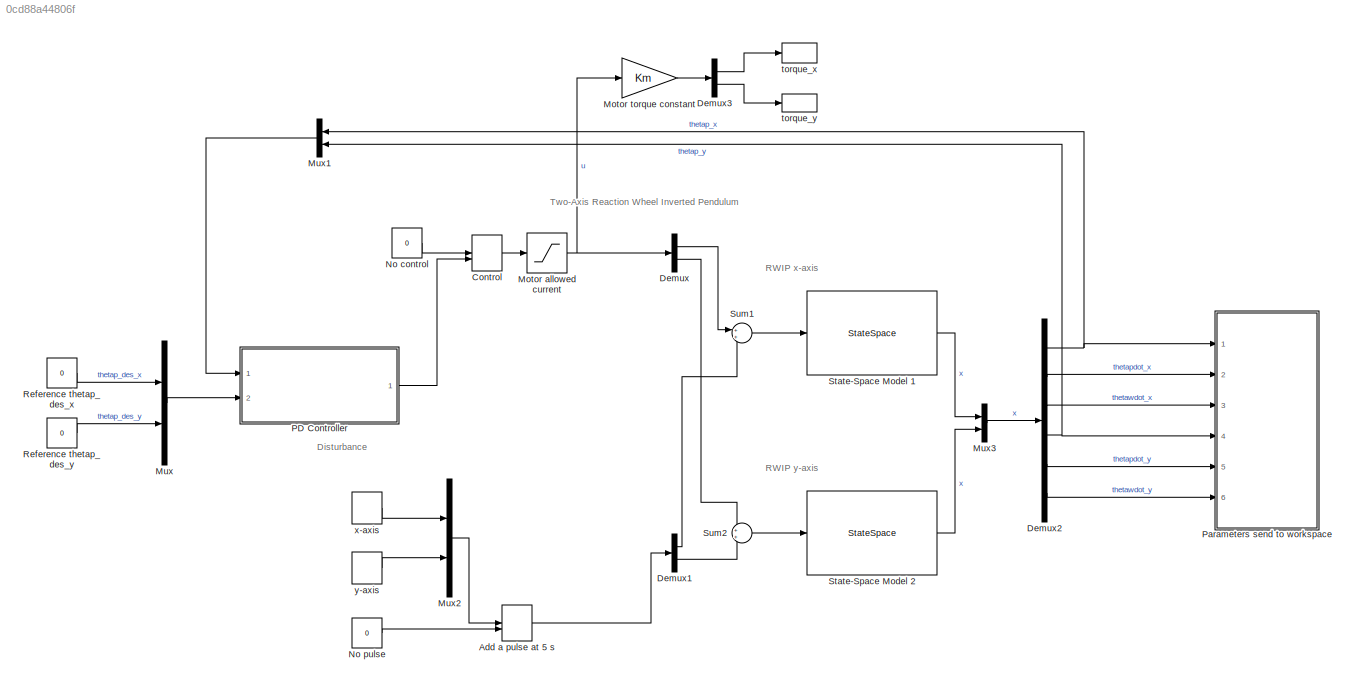
MODEL slx_0cd88a44806f
KIND model
CONFIG AbsTol = auto
CONFIG EnableMultiTasking = off
CONFIG FixedStep = auto
CONFIG MaxStep = auto
CONFIG MinStep = auto
CONFIG RelTol = 1e-3
CONFIG SampleTimeConstraint = Unconstrained
CONFIG Solver = VariableStepAuto
CONFIG SolverName = VariableStepAuto
CONFIG StartTime = 0.0
CONFIG StopTime = 10
BLOCK [ManualSwitch] Add a pulse at 5 s
  CurrentSetting = 0
BLOCK [ManualSwitch] Control
  CurrentSetting = 0
BLOCK [Demux] Demux
  DisplayOption = bar
  Outputs = 2
  Ports = [1, 2]
BLOCK [Demux] Demux1
  DisplayOption = bar
  Outputs = 2
  Ports = [1, 2]
BLOCK [Demux] Demux2
  DisplayOption = bar
  Outputs = 6
  Ports = [1, 6]
BLOCK [Demux] Demux3
  DisplayOption = bar
  Outputs = 2
  Ports = [1, 2]
BLOCK [Saturate] Motor allowed current
  InputPortMap = u0
  LowerLimit = -Imax
  Ports = [1, 1]
  UpperLimit = Imax
BLOCK [Gain] Motor torque constant
  Gain = Km
  OutDataTypeStr = Inherit: Inherit via internal rule
  ParamDataTypeStr = Inherit: Inherit via internal rule
  SaturateOnIntegerOverflow = off
BLOCK [Mux] Mux
  DisplayOption = bar
  Inputs = 2
  Ports = [2, 1]
BLOCK [Mux] Mux1
  DisplayOption = bar
  Inputs = 2
  Ports = [2, 1]
BLOCK [Mux] Mux2
  DisplayOption = bar
  Inputs = 2
  Ports = [2, 1]
BLOCK [Mux] Mux3
  DisplayOption = bar
  Inputs = 2
  Ports = [2, 1]
BLOCK [Constant] No control
  Value = 0
BLOCK [Constant] No pulse
  Value = 0
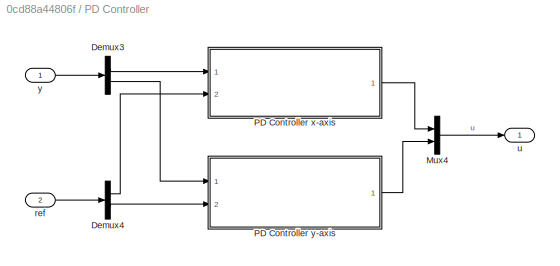
BLOCK [SubSystem] PD Controller
  Ports = [2, 1]
  RequestExecContextInheritance = off
  Variant = off
BLOCK [Demux] PD Controller/Demux3
  DisplayOption = bar
  Outputs = 2
  Ports = [1, 2]
BLOCK [Demux] PD Controller/Demux4
  DisplayOption = bar
  Outputs = 2
  Ports = [1, 2]
BLOCK [Mux] PD Controller/Mux4
  DisplayOption = bar
  Inputs = 2
  Ports = [2, 1]
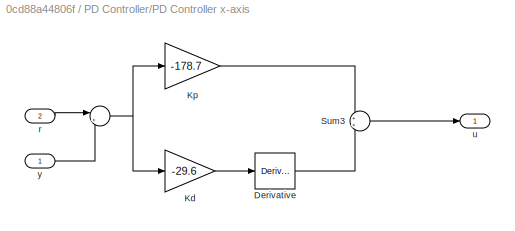
BLOCK [SubSystem] PD Controller/PD Controller x-axis
  Ports = [2, 1]
  RequestExecContextInheritance = off
  Variant = off
BLOCK [Sum] PD Controller/PD Controller x-axis/ 
  IconShape = round
  InputSameDT = off
  Inputs = |+-
  OutDataTypeStr = Inherit: Inherit via internal rule
  Ports = [2, 1]
  SaturateOnIntegerOverflow = off
BLOCK [Derivative] PD Controller/PD Controller x-axis/Derivative
BLOCK [Gain] PD Controller/PD Controller x-axis/Kd
  Gain = -29.6
  OutDataTypeStr = Inherit: Inherit via internal rule
  ParamDataTypeStr = Inherit: Inherit via internal rule
  SaturateOnIntegerOverflow = off
BLOCK [Gain] PD Controller/PD Controller x-axis/Kp
  Gain = -178.7
  OutDataTypeStr = Inherit: Inherit via internal rule
  ParamDataTypeStr = Inherit: Inherit via internal rule
  SaturateOnIntegerOverflow = off
BLOCK [Sum] PD Controller/PD Controller x-axis/Sum3
  IconShape = round
  InputSameDT = off
  OutDataTypeStr = Inherit: Inherit via internal rule
  Ports = [2, 1]
  SaturateOnIntegerOverflow = off
BLOCK [Inport] PD Controller/PD Controller x-axis/r
  IconDisplay = Port number
  Port = 2
BLOCK [Outport] PD Controller/PD Controller x-axis/u
  IconDisplay = Port number
BLOCK [Inport] PD Controller/PD Controller x-axis/y
  IconDisplay = Port number
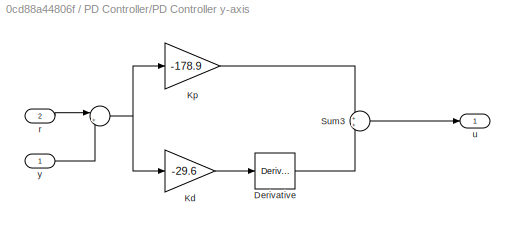
BLOCK [SubSystem] PD Controller/PD Controller y-axis
  Ports = [2, 1]
  RequestExecContextInheritance = off
  Variant = off
BLOCK [Sum] PD Controller/PD Controller y-axis/ 
  IconShape = round
  InputSameDT = off
  Inputs = |+-
  OutDataTypeStr = Inherit: Inherit via internal rule
  Ports = [2, 1]
  SaturateOnIntegerOverflow = off
BLOCK [Derivative] PD Controller/PD Controller y-axis/Derivative
BLOCK [Gain] PD Controller/PD Controller y-axis/Kd
  Gain = -29.6
  OutDataTypeStr = Inherit: Inherit via internal rule
  ParamDataTypeStr = Inherit: Inherit via internal rule
  SaturateOnIntegerOverflow = off
BLOCK [Gain] PD Controller/PD Controller y-axis/Kp
  Gain = -178.9
  OutDataTypeStr = Inherit: Inherit via internal rule
  ParamDataTypeStr = Inherit: Inherit via internal rule
  SaturateOnIntegerOverflow = off
BLOCK [Sum] PD Controller/PD Controller y-axis/Sum3
  IconShape = round
  InputSameDT = off
  OutDataTypeStr = Inherit: Inherit via internal rule
  Ports = [2, 1]
  SaturateOnIntegerOverflow = off
BLOCK [Inport] PD Controller/PD Controller y-axis/r
  IconDisplay = Port number
  Port = 2
BLOCK [Outport] PD Controller/PD Controller y-axis/u
  IconDisplay = Port number
BLOCK [Inport] PD Controller/PD Controller y-axis/y
  IconDisplay = Port number
BLOCK [Inport] PD Controller/ref
  IconDisplay = Port number
  Port = 2
BLOCK [Outport] PD Controller/u
  IconDisplay = Port number
BLOCK [Inport] PD Controller/y
  IconDisplay = Port number
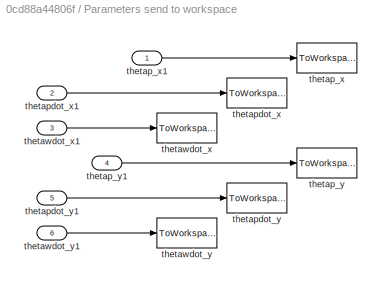
BLOCK [SubSystem] Parameters send to workspace
  Ports = [6]
  RequestExecContextInheritance = off
  Variant = off
BLOCK [ToWorkspace] Parameters send to workspace/thetap_x
  FixptAsFi = on
  MaxDataPoints = inf
  Ports = [1]
  SampleTime = -1
  Save2DSignal = 3-D array (concatenate along third dimension)
  SaveFormat = Structure With Time
  VariableName = thetap_x
BLOCK [Inport] Parameters send to workspace/thetap_x1
  IconDisplay = Port number
BLOCK [ToWorkspace] Parameters send to workspace/thetap_y
  FixptAsFi = on
  MaxDataPoints = inf
  Ports = [1]
  SampleTime = -1
  Save2DSignal = 3-D array (concatenate along third dimension)
  SaveFormat = Structure With Time
  VariableName = thetap_y
BLOCK [Inport] Parameters send to workspace/thetap_y1
  IconDisplay = Port number
  Port = 4
BLOCK [ToWorkspace] Parameters send to workspace/thetapdot_x
  FixptAsFi = on
  MaxDataPoints = inf
  Ports = [1]
  SampleTime = -1
  Save2DSignal = 3-D array (concatenate along third dimension)
  SaveFormat = Structure With Time
  VariableName = thetapdot_x
BLOCK [Inport] Parameters send to workspace/thetapdot_x1
  IconDisplay = Port number
  Port = 2
BLOCK [ToWorkspace] Parameters send to workspace/thetapdot_y
  FixptAsFi = on
  MaxDataPoints = inf
  Ports = [1]
  SampleTime = -1
  Save2DSignal = 3-D array (concatenate along third dimension)
  SaveFormat = Structure With Time
  VariableName = thetapdot_y
BLOCK [Inport] Parameters send to workspace/thetapdot_y1
  IconDisplay = Port number
  Port = 5
BLOCK [ToWorkspace] Parameters send to workspace/thetawdot_x
  FixptAsFi = on
  MaxDataPoints = inf
  Ports = [1]
  SampleTime = -1
  Save2DSignal = 3-D array (concatenate along third dimension)
  SaveFormat = Structure With Time
  VariableName = thetawdot_x
BLOCK [Inport] Parameters send to workspace/thetawdot_x1
  IconDisplay = Port number
  Port = 3
BLOCK [ToWorkspace] Parameters send to workspace/thetawdot_y
  FixptAsFi = on
  MaxDataPoints = inf
  Ports = [1]
  SampleTime = -1
  Save2DSignal = 3-D array (concatenate along third dimension)
  SaveFormat = Structure With Time
  VariableName = thetawdot_y
BLOCK [Inport] Parameters send to workspace/thetawdot_y1
  IconDisplay = Port number
  Port = 6
BLOCK [Constant] Reference thetap_des_x
  Value = 0
BLOCK [Constant] Reference thetap_des_y
  Value = 0
BLOCK [StateSpace] State-Space Model 1
  A = [0 1 0;(mp*lp+mw*lw)*g/(mp*lp^2+mw*lw^2+Ip) 0 0;(mp*lp+mw*lw)*g/(-(mp*lp^2+mw*lw^2+Ip)) 0 0]
  B = [0; -Km/(mp*lp^2+mw*lw^2+Ip); Km*(mp*lp^2+mw*lw^2+Ip+Iw)/(Iw*(mp*lp^2+mw*lw^2+Ip))]
  C = eye(3)
  ContinuousStateAttributes = {'thetap', 'thetapdot', 'thetawdot'}
  D = [0; 0; 0]
  InitialCondition = x0
  Ports = [1, 1]
BLOCK [StateSpace] State-Space Model 2
  A = [0 1 0;(mp*lp+mw*lw)*g/(mp*lp^2+mw*lw^2+Ip) 0 0;(mp*lp+mw*lw)*g/(-(mp*lp^2+mw*lw^2+Ip)) 0 0]
  B = [0; -Km/(mp*lp^2+mw*lw^2+Ip); Km*(mp*lp^2+mw*lw^2+Ip+Iw)/(Iw*(mp*lp^2+mw*lw^2+Ip))]
  C = eye(3)
  ContinuousStateAttributes = {'thetap', 'thetapdot', 'thetawdot'}
  D = [0; 0; 0]
  InitialCondition = y0
  Ports = [1, 1]
BLOCK [Sum] Sum1
  IconShape = round
  InputSameDT = off
  OutDataTypeStr = Inherit: Inherit via internal rule
  Ports = [2, 1]
  SaturateOnIntegerOverflow = off
BLOCK [Sum] Sum2
  IconShape = round
  InputSameDT = off
  OutDataTypeStr = Inherit: Inherit via internal rule
  Ports = [2, 1]
  SaturateOnIntegerOverflow = off
BLOCK [ToWorkspace] torque_x
  FixptAsFi = on
  MaxDataPoints = inf
  Ports = [1]
  SampleTime = -1
  Save2DSignal = 3-D array (concatenate along third dimension)
  SaveFormat = Structure With Time
  VariableName = torque_x
BLOCK [ToWorkspace] torque_y
  FixptAsFi = on
  MaxDataPoints = inf
  Ports = [1]
  SampleTime = -1
  Save2DSignal = 3-D array (concatenate along third dimension)
  SaveFormat = Structure With Time
  VariableName = torque_y
BLOCK [DiscretePulseGenerator] x-axis
  Amplitude = 100
  Period = 10
  PhaseDelay = 5
  Ports = [0, 1]
  PulseType = Time based
  PulseWidth = 0.5
BLOCK [DiscretePulseGenerator] y-axis
  Amplitude = 100
  Period = 10
  PhaseDelay = 5
  Ports = [0, 1]
  PulseType = Time based
  PulseWidth = 0.5
ANNOTATION (root): Disturbance
ANNOTATION (root): RWIP x-axis
ANNOTATION (root): RWIP y-axis
ANNOTATION (root): Two-Axis Reaction Wheel Inverted Pendulum
LINE Add a pulse at 5 s:1 -> Demux1:1
LINE Control:1 -> Motor allowed current:1
LINE Demux1:1 -> Sum1:2
LINE Demux1:2 -> Sum2:2
NET Demux2:1 -> Mux1:1, Parameters send to workspace:1
LINE Demux2:2 -> Parameters send to workspace:2
LINE Demux2:3 -> Parameters send to workspace:3
NET Demux2:4 -> Mux1:2, Parameters send to workspace:4
LINE Demux2:5 -> Parameters send to workspace:5
LINE Demux2:6 -> Parameters send to workspace:6
LINE Demux3:1 -> torque_x:1
LINE Demux3:2 -> torque_y:1
LINE Demux:1 -> Sum1:1
LINE Demux:2 -> Sum2:1
NET Motor allowed current:1 -> Demux:1, Motor torque constant:1
LINE Motor torque constant:1 -> Demux3:1
LINE Mux1:1 -> PD Controller:1
LINE Mux2:1 -> Add a pulse at 5 s:1
LINE Mux3:1 -> Demux2:1
LINE Mux:1 -> PD Controller:2
LINE No control:1 -> Control:1
LINE No pulse:1 -> Add a pulse at 5 s:2
LINE PD Controller/Demux3:1 -> PD Controller/PD Controller x-axis:1
LINE PD Controller/Demux3:2 -> PD Controller/PD Controller y-axis:1
LINE PD Controller/Demux4:1 -> PD Controller/PD Controller x-axis:2
LINE PD Controller/Demux4:2 -> PD Controller/PD Controller y-axis:2
LINE PD Controller/Mux4:1 -> PD Controller/u:1
NET PD Controller/PD Controller x-axis/ :1 -> PD Controller/PD Controller x-axis/Kd:1, PD Controller/PD Controller x-axis/Kp:1
LINE PD Controller/PD Controller x-axis/Derivative:1 -> PD Controller/PD Controller x-axis/Sum3:2
LINE PD Controller/PD Controller x-axis/Kd:1 -> PD Controller/PD Controller x-axis/Derivative:1
LINE PD Controller/PD Controller x-axis/Kp:1 -> PD Controller/PD Controller x-axis/Sum3:1
LINE PD Controller/PD Controller x-axis/Sum3:1 -> PD Controller/PD Controller x-axis/u:1
LINE PD Controller/PD Controller x-axis/r:1 -> PD Controller/PD Controller x-axis/ :1
LINE PD Controller/PD Controller x-axis/y:1 -> PD Controller/PD Controller x-axis/ :2
LINE PD Controller/PD Controller x-axis:1 -> PD Controller/Mux4:1
NET PD Controller/PD Controller y-axis/ :1 -> PD Controller/PD Controller y-axis/Kd:1, PD Controller/PD Controller y-axis/Kp:1
LINE PD Controller/PD Controller y-axis/Derivative:1 -> PD Controller/PD Controller y-axis/Sum3:2
LINE PD Controller/PD Controller y-axis/Kd:1 -> PD Controller/PD Controller y-axis/Derivative:1
LINE PD Controller/PD Controller y-axis/Kp:1 -> PD Controller/PD Controller y-axis/Sum3:1
LINE PD Controller/PD Controller y-axis/Sum3:1 -> PD Controller/PD Controller y-axis/u:1
LINE PD Controller/PD Controller y-axis/r:1 -> PD Controller/PD Controller y-axis/ :1
LINE PD Controller/PD Controller y-axis/y:1 -> PD Controller/PD Controller y-axis/ :2
LINE PD Controller/PD Controller y-axis:1 -> PD Controller/Mux4:2
LINE PD Controller/ref:1 -> PD Controller/Demux4:1
LINE PD Controller/y:1 -> PD Controller/Demux3:1
LINE PD Controller:1 -> Control:2
LINE Parameters send to workspace/thetap_x1:1 -> Parameters send to workspace/thetap_x:1
LINE Parameters send to workspace/thetap_y1:1 -> Parameters send to workspace/thetap_y:1
LINE Parameters send to workspace/thetapdot_x1:1 -> Parameters send to workspace/thetapdot_x:1
LINE Parameters send to workspace/thetapdot_y1:1 -> Parameters send to workspace/thetapdot_y:1
LINE Parameters send to workspace/thetawdot_x1:1 -> Parameters send to workspace/thetawdot_x:1
LINE Parameters send to workspace/thetawdot_y1:1 -> Parameters send to workspace/thetawdot_y:1
LINE Reference thetap_des_x:1 -> Mux:1
LINE Reference thetap_des_y:1 -> Mux:2
LINE State-Space Model 1:1 -> Mux3:1
LINE State-Space Model 2:1 -> Mux3:2
LINE Sum1:1 -> State-Space Model 1:1
LINE Sum2:1 -> State-Space Model 2:1
LINE x-axis:1 -> Mux2:1
LINE y-axis:1 -> Mux2:2
note: NET lines group one-source signal fan-out (src -> all destinations, sorted); 1:1 wires keep LINE
